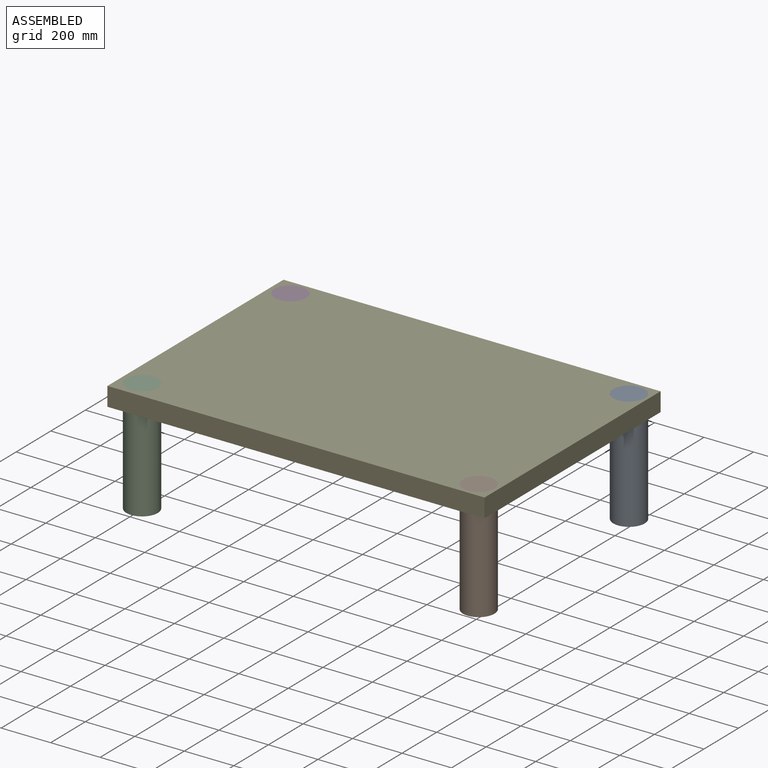
[diagram: assembled view]
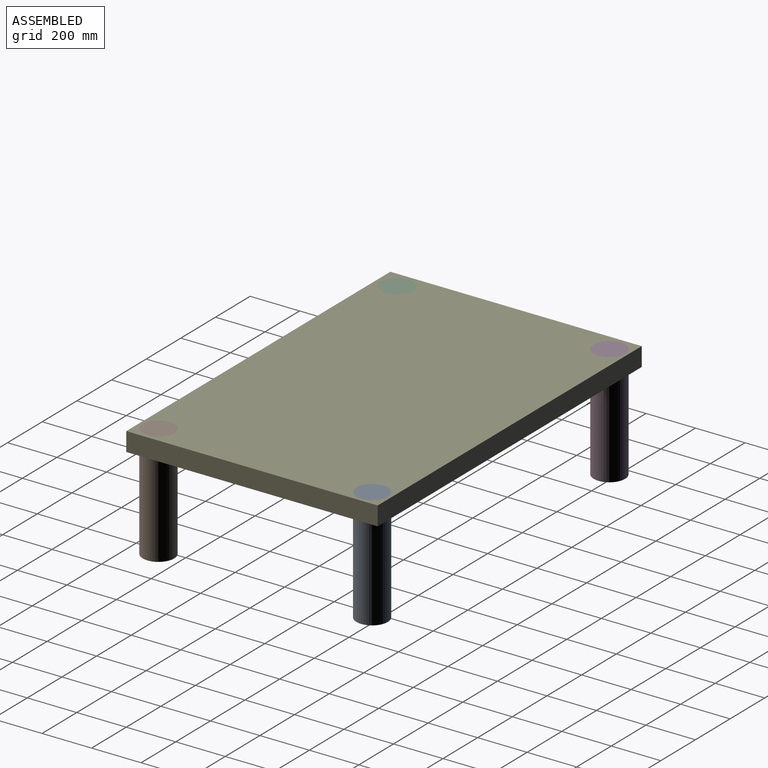
[diagram: assembled view, second angle]
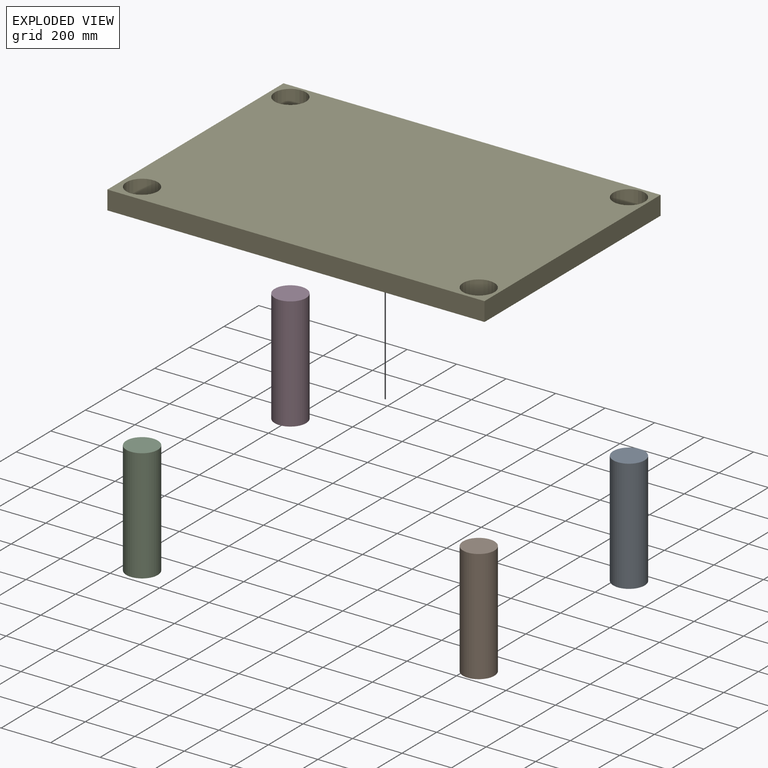
[diagram: exploded view]
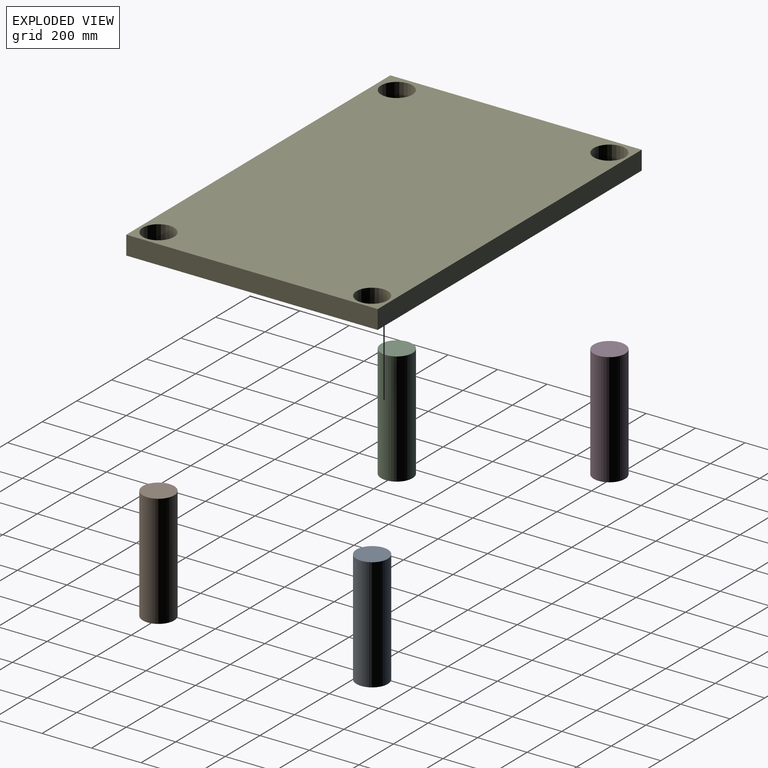
[diagram: exploded view, second angle]
ASSEMBLY  parts=5 mates=4
PART A: 3 faces, bbox 127x127x457.2 mm
  f0: cylinder r=63.5mm len=457.2mm, axis (0,0,1), area 182414.7mm2, adj f1,f2
  f1: plane 127x127mm, normal (0,0,-1), area 12667.7mm2, adj f0
  f2: plane 127x127mm, normal (0,0,1), area 12667.7mm2, adj f0
PART B: 3 faces, bbox 127x127x457.2 mm
  f0: cylinder r=63.5mm len=457.2mm, axis (0,0,1), area 182414.7mm2, adj f1,f2
  f1: plane 127x127mm, normal (0,0,-1), area 12667.7mm2, adj f0
  f2: plane 127x127mm, normal (0,0,1), area 12667.7mm2, adj f0
PART C: same geometry as B
PART D: 3 faces, bbox 127x127x457.2 mm
  f0: cylinder r=63.5mm len=457.2mm, axis (0,0,1), area 182414.7mm2, adj f1,f2
  f1: plane 127x127mm, normal (0,0,-1), area 12667.7mm2, adj f0
  f2: plane 127x127mm, normal (0,0,1), area 12667.7mm2, adj f0
PART E: 10 faces, bbox 1524x1016x76.2 mm
  f0: plane 1524x76.2mm, normal (0,1,0), area 116128.8mm2, adj f1,f7,f8,f9
  f1: plane 1016x76.2mm, normal (-1,0,0), area 77419.2mm2, adj f0,f2,f8,f9
  f2: plane 1524x76.2mm, normal (0,-1,0), area 116128.8mm2, adj f1,f7,f8,f9
  f3: cylinder r=63.5mm len=127mm, axis (0,0,-1), area 30402.4mm2, adj f8,f9
  f4: cylinder r=63.5mm len=127mm, axis (0,0,-1), area 30402.4mm2, adj f8,f9
  f5: cylinder r=63.5mm len=127mm, axis (0,0,-1), area 30402.4mm2, adj f8,f9
  f6: cylinder r=63.5mm len=127mm, axis (0,0,-1), area 30402.4mm2, adj f8,f9
  f7: plane 1016x76.2mm, normal (1,0,0), area 77419.2mm2, adj f0,f2,f8,f9
  f8: plane 1524x1016mm, normal (0,0,1), area 1497713.3mm2, adj f0,f1,f2,f3,f4,f5,f6,f7
  f9: plane 1524x1016mm, normal (0,0,-1), area 1497713.3mm2, adj f0,f1,f2,f3,f4,f5,f6,f7
PLACE A t=(988.61,1087.47,-22.79)mm
PLACE B t=(2352.54,215.53,-22.79)mm
PLACE C t=(986.97,222.7,-22.79)mm
PLACE D t=(986.97,222.7,-22.79)mm
PLACE E t=(986.97,222.7,-98.99)mm
MATE slider C.f0 <-> E.f3  axis (0,0,1) through (308.77,-170.6,-22.79)mm
MATE slider B.f0 <-> E.f4  axis (0,0,1) through (1674.34,-177.77,-22.79)mm
MATE slider D.f0 <-> E.f6  axis (0,0,1) through (307.32,687.55,-22.79)mm
MATE slider A.f0 <-> E.f5  axis (0,0,1) through (1675.99,687,-22.79)mm
